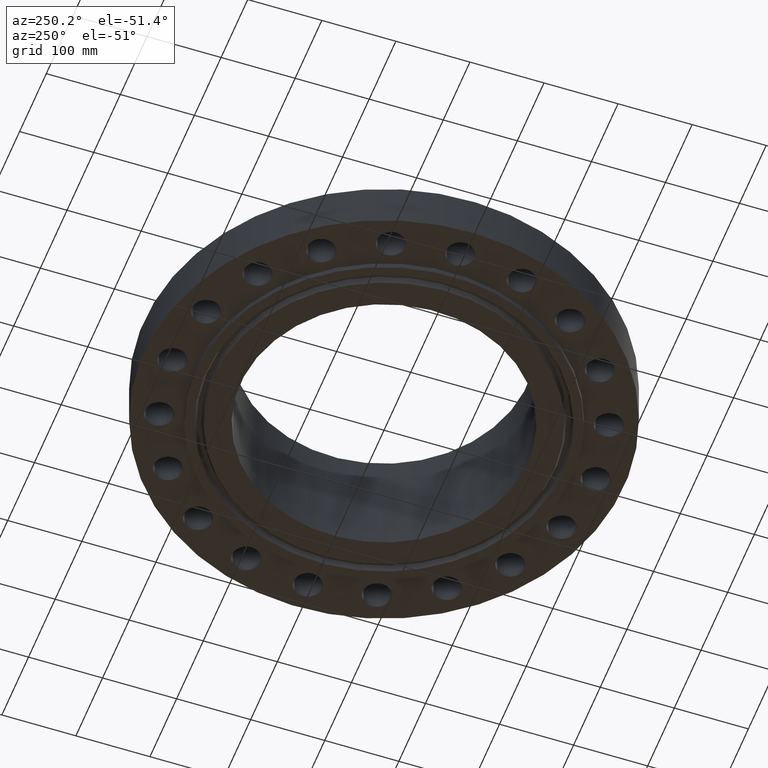
[diagram: clean part render]
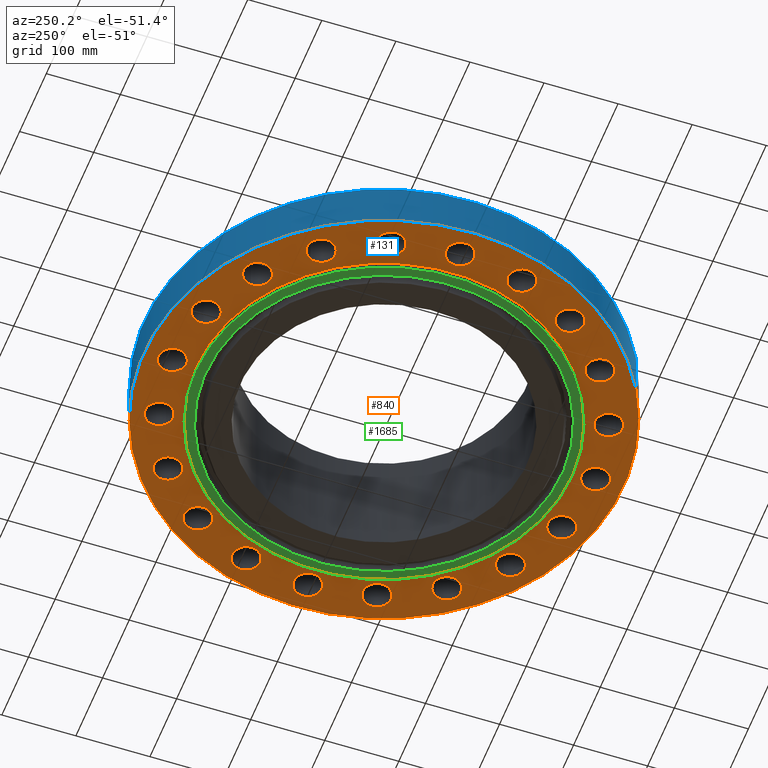
[diagram: same view with three faces highlighted in distinct colors, each labeled with its STEP entity id]
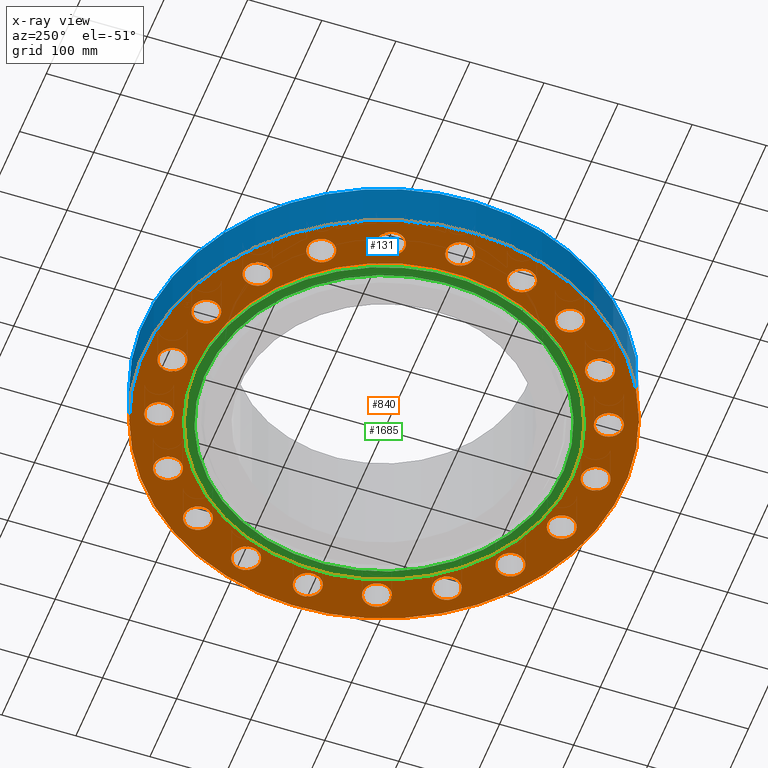
[diagram: x-ray of the same camera — body ghosted, the three highlighted faces saturated]
A machine part, auxiliary view with three faces highlighted in distinct colors.
The next image is the same camera in x-ray (body ghosted, the three faces saturated) — at least one of them is partly hidden behind the body in this view.
Their STEP definitions:

[orange] entity #840 — the highlighted planar face has unit normal (0, 0, -1).
#51=AXIS2_PLACEMENT_3D('Circle Axis2P3D',#49,#50,$) ;
#77=AXIS2_PLACEMENT_3D('Circle Axis2P3D',#75,#76,$) ;
#99=AXIS2_PLACEMENT_3D('Circle Axis2P3D',#97,#98,$) ;
#134=AXIS2_PLACEMENT_3D('Circle Axis2P3D',#132,#133,$) ;
#447=AXIS2_PLACEMENT_3D('Circle Axis2P3D',#445,#446,$) ;
#471=AXIS2_PLACEMENT_3D('Circle Axis2P3D',#469,#470,$) ;
#484=AXIS2_PLACEMENT_3D('Plane Axis2P3D',#481,#482,#483) ;
#500=AXIS2_PLACEMENT_3D('Circle Axis2P3D',#498,#499,$) ;
#509=AXIS2_PLACEMENT_3D('Circle Axis2P3D',#507,#508,$) ;
#518=AXIS2_PLACEMENT_3D('Circle Axis2P3D',#516,#517,$) ;
#527=AXIS2_PLACEMENT_3D('Circle Axis2P3D',#525,#526,$) ;
#536=AXIS2_PLACEMENT_3D('Circle Axis2P3D',#534,#535,$) ;
#545=AXIS2_PLACEMENT_3D('Circle Axis2P3D',#543,#544,$) ;
#554=AXIS2_PLACEMENT_3D('Circle Axis2P3D',#552,#553,$) ;
#563=AXIS2_PLACEMENT_3D('Circle Axis2P3D',#561,#562,$) ;
#572=AXIS2_PLACEMENT_3D('Circle Axis2P3D',#570,#571,$) ;
#581=AXIS2_PLACEMENT_3D('Circle Axis2P3D',#579,#580,$) ;
#590=AXIS2_PLACEMENT_3D('Circle Axis2P3D',#588,#589,$) ;
#599=AXIS2_PLACEMENT_3D('Circle Axis2P3D',#597,#598,$) ;
#608=AXIS2_PLACEMENT_3D('Circle Axis2P3D',#606,#607,$) ;
#617=AXIS2_PLACEMENT_3D('Circle Axis2P3D',#615,#616,$) ;
#626=AXIS2_PLACEMENT_3D('Circle Axis2P3D',#624,#625,$) ;
#635=AXIS2_PLACEMENT_3D('Circle Axis2P3D',#633,#634,$) ;
#644=AXIS2_PLACEMENT_3D('Circle Axis2P3D',#642,#643,$) ;
#653=AXIS2_PLACEMENT_3D('Circle Axis2P3D',#651,#652,$) ;
#662=AXIS2_PLACEMENT_3D('Circle Axis2P3D',#660,#661,$) ;
#671=AXIS2_PLACEMENT_3D('Circle Axis2P3D',#669,#670,$) ;
#680=AXIS2_PLACEMENT_3D('Circle Axis2P3D',#678,#679,$) ;
#689=AXIS2_PLACEMENT_3D('Circle Axis2P3D',#687,#688,$) ;
#698=AXIS2_PLACEMENT_3D('Circle Axis2P3D',#696,#697,$) ;
#707=AXIS2_PLACEMENT_3D('Circle Axis2P3D',#705,#706,$) ;
#716=AXIS2_PLACEMENT_3D('Circle Axis2P3D',#714,#715,$) ;
#725=AXIS2_PLACEMENT_3D('Circle Axis2P3D',#723,#724,$) ;
#734=AXIS2_PLACEMENT_3D('Circle Axis2P3D',#732,#733,$) ;
#743=AXIS2_PLACEMENT_3D('Circle Axis2P3D',#741,#742,$) ;
#752=AXIS2_PLACEMENT_3D('Circle Axis2P3D',#750,#751,$) ;
#761=AXIS2_PLACEMENT_3D('Circle Axis2P3D',#759,#760,$) ;
#770=AXIS2_PLACEMENT_3D('Circle Axis2P3D',#768,#769,$) ;
#779=AXIS2_PLACEMENT_3D('Circle Axis2P3D',#777,#778,$) ;
#788=AXIS2_PLACEMENT_3D('Circle Axis2P3D',#786,#787,$) ;
#797=AXIS2_PLACEMENT_3D('Circle Axis2P3D',#795,#796,$) ;
#806=AXIS2_PLACEMENT_3D('Circle Axis2P3D',#804,#805,$) ;
#815=AXIS2_PLACEMENT_3D('Circle Axis2P3D',#813,#814,$) ;
#824=AXIS2_PLACEMENT_3D('Circle Axis2P3D',#822,#823,$) ;
#833=AXIS2_PLACEMENT_3D('Circle Axis2P3D',#831,#832,$) ;
#44=CARTESIAN_POINT('Vertex',(-0.65818692142,11.609569154,-2.79741234551E-016)) ;
#49=CARTESIAN_POINT('Axis2P3D Location',(0.,11.25,0.)) ;
#53=CARTESIAN_POINT('Vertex',(0.65818692142,10.8904308461,-2.79741234551E-016)) ;
#75=CARTESIAN_POINT('Axis2P3D Location',(0.,11.25,0.)) ;
#97=CARTESIAN_POINT('Axis2P3D Location',(0.,0.,5.59482469102E-016)) ;
#101=CARTESIAN_POINT('Vertex',(-6.11267561723,-11.1891776641,5.59482469102E-016)) ;
#103=CARTESIAN_POINT('Vertex',(6.11267561723,11.1891776641,5.59482469102E-016)) ;
#132=CARTESIAN_POINT('Axis2P3D Location',(0.,0.,5.59482469102E-016)) ;
#442=CARTESIAN_POINT('Vertex',(-4.79425538606,-8.77582561894,5.59482469102E-016)) ;
#445=CARTESIAN_POINT('Axis2P3D Location',(0.,0.,1.1189649382E-015)) ;
#449=CARTESIAN_POINT('Vertex',(4.79425538606,8.77582561894,5.59482469102E-016)) ;
#469=CARTESIAN_POINT('Axis2P3D Location',(0.,0.,1.1189649382E-015)) ;
#481=CARTESIAN_POINT('Axis2P3D Location',(0.,10.,0.)) ;
#498=CARTESIAN_POINT('Axis2P3D Location',(3.47644118673,10.6993858084,0.)) ;
#502=CARTESIAN_POINT('Vertex',(2.9615812054,11.2447473395,0.)) ;
#504=CARTESIAN_POINT('Vertex',(3.99130116806,10.1540242772,-2.79741234551E-016)) ;
#507=CARTESIAN_POINT('Axis2P3D Location',(3.47644118673,10.6993858084,0.)) ;
#516=CARTESIAN_POINT('Axis2P3D Location',(6.61258408832,9.10144118675,0.)) ;
#520=CARTESIAN_POINT('Vertex',(6.29144912929,9.77921130862,0.)) ;
#522=CARTESIAN_POINT('Vertex',(6.93371904735,8.42367106489,-1.95818864186E-015)) ;
#525=CARTESIAN_POINT('Axis2P3D Location',(6.61258408832,9.10144118675,0.)) ;
#534=CARTESIAN_POINT('Axis2P3D Location',(9.10144118675,6.61258408832,0.)) ;
#538=CARTESIAN_POINT('Vertex',(9.00546617729,7.3564179391,0.)) ;
#540=CARTESIAN_POINT('Vertex',(9.19741619621,5.86875023754,-2.79741234551E-016)) ;
#543=CARTESIAN_POINT('Axis2P3D Location',(9.10144118675,6.61258408832,0.)) ;
#552=CARTESIAN_POINT('Axis2P3D Location',(10.6993858084,3.47644118673,0.)) ;
#556=CARTESIAN_POINT('Vertex',(10.8379654511,4.21352712651,0.)) ;
#558=CARTESIAN_POINT('Vertex',(10.5608061656,2.73935524695,-2.79741234551E-016)) ;
#561=CARTESIAN_POINT('Axis2P3D Location',(10.6993858084,3.47644118673,0.)) ;
#570=CARTESIAN_POINT('Axis2P3D Location',(11.25,2.23792987641E-015,0.)) ;
#574=CARTESIAN_POINT('Vertex',(11.609569154,0.65818692142,0.)) ;
#576=CARTESIAN_POINT('Vertex',(10.8904308461,-0.65818692142,-2.79741234551E-016)) ;
#579=CARTESIAN_POINT('Axis2P3D Location',(11.25,0.,0.)) ;
#588=CARTESIAN_POINT('Axis2P3D Location',(10.6993858084,-3.47644118673,0.)) ;
#592=CARTESIAN_POINT('Vertex',(11.2447473395,-2.9615812054,0.)) ;
#594=CARTESIAN_POINT('Vertex',(10.1540242772,-3.99130116806,-2.79741234551E-016)) ;
#597=CARTESIAN_POINT('Axis2P3D Location',(10.6993858084,-3.47644118673,0.)) ;
#606=CARTESIAN_POINT('Axis2P3D Location',(9.10144118675,-6.61258408832,0.)) ;
#610=CARTESIAN_POINT('Vertex',(9.77921130862,-6.29144912929,0.)) ;
#612=CARTESIAN_POINT('Vertex',(8.42367106489,-6.93371904735,-2.79741234551E-016)) ;
#615=CARTESIAN_POINT('Axis2P3D Location',(9.10144118675,-6.61258408832,0.)) ;
#624=CARTESIAN_POINT('Axis2P3D Location',(6.61258408832,-9.10144118675,0.)) ;
#628=CARTESIAN_POINT('Vertex',(7.3564179391,-9.00546617729,0.)) ;
#630=CARTESIAN_POINT('Vertex',(5.86875023754,-9.19741619621,-2.79741234551E-016)) ;
#633=CARTESIAN_POINT('Axis2P3D Location',(6.61258408832,-9.10144118675,0.)) ;
#642=CARTESIAN_POINT('Axis2P3D Location',(3.47644118673,-10.6993858084,0.)) ;
#646=CARTESIAN_POINT('Vertex',(4.21352712651,-10.8379654511,0.)) ;
#648=CARTESIAN_POINT('Vertex',(2.73935524695,-10.5608061656,-2.79741234551E-016)) ;
#651=CARTESIAN_POINT('Axis2P3D Location',(3.47644118673,-10.6993858084,0.)) ;
#660=CARTESIAN_POINT('Axis2P3D Location',(6.73127345639E-015,-11.25,0.)) ;
#664=CARTESIAN_POINT('Vertex',(0.65818692142,-11.609569154,0.)) ;
#666=CARTESIAN_POINT('Vertex',(-0.65818692142,-10.8904308461,-2.79741234551E-016)) ;
#669=CARTESIAN_POINT('Axis2P3D Location',(6.18927481445E-015,-11.25,0.)) ;
#678=CARTESIAN_POINT('Axis2P3D Location',(-3.47644118673,-10.6993858084,0.)) ;
#682=CARTESIAN_POINT('Vertex',(-2.9615812054,-11.2447473395,0.)) ;
#684=CARTESIAN_POINT('Vertex',(-3.99130116806,-10.1540242772,-2.79741234551E-016)) ;
#687=CARTESIAN_POINT('Axis2P3D Location',(-3.47644118673,-10.6993858084,0.)) ;
#696=CARTESIAN_POINT('Axis2P3D Location',(-6.61258408832,-9.10144118675,0.)) ;
#700=CARTESIAN_POINT('Vertex',(-6.29144912929,-9.77921130862,0.)) ;
#702=CARTESIAN_POINT('Vertex',(-6.93371904735,-8.42367106489,-1.95818864186E-015)) ;
#705=CARTESIAN_POINT('Axis2P3D Location',(-6.61258408832,-9.10144118675,0.)) ;
#714=CARTESIAN_POINT('Axis2P3D Location',(-9.10144118675,-6.61258408832,0.)) ;
#718=CARTESIAN_POINT('Vertex',(-9.00546617729,-7.3564179391,0.)) ;
#720=CARTESIAN_POINT('Vertex',(-9.19741619621,-5.86875023754,-2.79741234551E-016)) ;
#723=CARTESIAN_POINT('Axis2P3D Location',(-9.10144118675,-6.61258408832,0.)) ;
#732=CARTESIAN_POINT('Axis2P3D Location',(-10.6993858084,-3.47644118673,0.)) ;
#736=CARTESIAN_POINT('Vertex',(-10.8379654511,-4.21352712651,0.)) ;
#738=CARTESIAN_POINT('Vertex',(-10.5608061656,-2.73935524695,-1.95818864186E-015)) ;
#741=CARTESIAN_POINT('Axis2P3D Location',(-10.6993858084,-3.47644118673,0.)) ;
#750=CARTESIAN_POINT('Axis2P3D Location',(-11.25,-8.95171950564E-015,0.)) ;
#754=CARTESIAN_POINT('Vertex',(-11.609569154,-0.65818692142,0.)) ;
#756=CARTESIAN_POINT('Vertex',(-10.8904308461,0.65818692142,-2.79741234551E-016)) ;
#759=CARTESIAN_POINT('Axis2P3D Location',(-11.25,-8.95171950564E-015,0.)) ;
#768=CARTESIAN_POINT('Axis2P3D Location',(-10.6993858084,3.47644118673,0.)) ;
#772=CARTESIAN_POINT('Vertex',(-11.2447473395,2.9615812054,0.)) ;
#774=CARTESIAN_POINT('Vertex',(-10.1540242772,3.99130116806,-1.95818864186E-015)) ;
#777=CARTESIAN_POINT('Axis2P3D Location',(-10.6993858084,3.47644118673,0.)) ;
#786=CARTESIAN_POINT('Axis2P3D Location',(-9.10144118675,6.61258408832,0.)) ;
#790=CARTESIAN_POINT('Vertex',(-9.77921130862,6.29144912929,0.)) ;
#792=CARTESIAN_POINT('Vertex',(-8.42367106489,6.93371904735,-2.79741234551E-016)) ;
#795=CARTESIAN_POINT('Axis2P3D Location',(-9.10144118675,6.61258408832,0.)) ;
#804=CARTESIAN_POINT('Axis2P3D Location',(-6.61258408832,9.10144118675,0.)) ;
#808=CARTESIAN_POINT('Vertex',(-7.3564179391,9.00546617729,0.)) ;
#810=CARTESIAN_POINT('Vertex',(-5.86875023754,9.19741619621,-2.79741234551E-016)) ;
#813=CARTESIAN_POINT('Axis2P3D Location',(-6.61258408832,9.10144118675,0.)) ;
#822=CARTESIAN_POINT('Axis2P3D Location',(-3.47644118673,10.6993858084,0.)) ;
#826=CARTESIAN_POINT('Vertex',(-4.21352712651,10.8379654511,0.)) ;
#828=CARTESIAN_POINT('Vertex',(-2.73935524695,10.5608061656,-1.95818864186E-015)) ;
#831=CARTESIAN_POINT('Axis2P3D Location',(-3.47644118673,10.6993858084,0.)) ;
#50=DIRECTION('Axis2P3D Direction',(0.,-0.,-0.0393700787402)) ;
#76=DIRECTION('Axis2P3D Direction',(0.,-0.,-0.0393700787402)) ;
#98=DIRECTION('Axis2P3D Direction',(0.,0.,-0.0393700787402)) ;
#133=DIRECTION('Axis2P3D Direction',(0.,0.,-0.0393700787402)) ;
#446=DIRECTION('Axis2P3D Direction',(0.,0.,-0.0393700787402)) ;
#470=DIRECTION('Axis2P3D Direction',(0.,0.,-0.0393700787402)) ;
#482=DIRECTION('Axis2P3D Direction',(0.,0.,-0.0393700787402)) ;
#483=DIRECTION('Axis2P3D XDirection',(0.0393700787402,0.,0.)) ;
#499=DIRECTION('Axis2P3D Direction',(0.,0.,-0.0393700787402)) ;
#508=DIRECTION('Axis2P3D Direction',(0.,0.,-0.0393700787402)) ;
#517=DIRECTION('Axis2P3D Direction',(0.,0.,-0.0393700787402)) ;
#526=DIRECTION('Axis2P3D Direction',(0.,0.,-0.0393700787402)) ;
#535=DIRECTION('Axis2P3D Direction',(0.,0.,-0.0393700787402)) ;
#544=DIRECTION('Axis2P3D Direction',(0.,0.,-0.0393700787402)) ;
#553=DIRECTION('Axis2P3D Direction',(0.,0.,-0.0393700787402)) ;
#562=DIRECTION('Axis2P3D Direction',(0.,0.,-0.0393700787402)) ;
#571=DIRECTION('Axis2P3D Direction',(0.,0.,-0.0393700787402)) ;
#580=DIRECTION('Axis2P3D Direction',(0.,0.,-0.0393700787402)) ;
#589=DIRECTION('Axis2P3D Direction',(0.,0.,-0.0393700787402)) ;
#598=DIRECTION('Axis2P3D Direction',(0.,0.,-0.0393700787402)) ;
#607=DIRECTION('Axis2P3D Direction',(0.,0.,-0.0393700787402)) ;
#616=DIRECTION('Axis2P3D Direction',(0.,0.,-0.0393700787402)) ;
#625=DIRECTION('Axis2P3D Direction',(0.,0.,-0.0393700787402)) ;
#634=DIRECTION('Axis2P3D Direction',(0.,0.,-0.0393700787402)) ;
#643=DIRECTION('Axis2P3D Direction',(0.,0.,-0.0393700787402)) ;
#652=DIRECTION('Axis2P3D Direction',(0.,0.,-0.0393700787402)) ;
#661=DIRECTION('Axis2P3D Direction',(0.,0.,-0.0393700787402)) ;
#670=DIRECTION('Axis2P3D Direction',(0.,0.,-0.0393700787402)) ;
#679=DIRECTION('Axis2P3D Direction',(0.,0.,-0.0393700787402)) ;
#688=DIRECTION('Axis2P3D Direction',(0.,0.,-0.0393700787402)) ;
#697=DIRECTION('Axis2P3D Direction',(0.,0.,-0.0393700787402)) ;
#706=DIRECTION('Axis2P3D Direction',(0.,0.,-0.0393700787402)) ;
#715=DIRECTION('Axis2P3D Direction',(0.,0.,-0.0393700787402)) ;
#724=DIRECTION('Axis2P3D Direction',(0.,0.,-0.0393700787402)) ;
#733=DIRECTION('Axis2P3D Direction',(0.,0.,-0.0393700787402)) ;
#742=DIRECTION('Axis2P3D Direction',(0.,0.,-0.0393700787402)) ;
#751=DIRECTION('Axis2P3D Direction',(0.,0.,-0.0393700787402)) ;
#760=DIRECTION('Axis2P3D Direction',(0.,0.,-0.0393700787402)) ;
#769=DIRECTION('Axis2P3D Direction',(0.,0.,-0.0393700787402)) ;
#778=DIRECTION('Axis2P3D Direction',(0.,0.,-0.0393700787402)) ;
#787=DIRECTION('Axis2P3D Direction',(0.,0.,-0.0393700787402)) ;
#796=DIRECTION('Axis2P3D Direction',(0.,0.,-0.0393700787402)) ;
#805=DIRECTION('Axis2P3D Direction',(0.,0.,-0.0393700787402)) ;
#814=DIRECTION('Axis2P3D Direction',(0.,0.,-0.0393700787402)) ;
#823=DIRECTION('Axis2P3D Direction',(0.,0.,-0.0393700787402)) ;
#832=DIRECTION('Axis2P3D Direction',(0.,0.,-0.0393700787402)) ;
#487=ORIENTED_EDGE('',*,*,#105,.T.) ;
#488=ORIENTED_EDGE('',*,*,#136,.T.) ;
#491=ORIENTED_EDGE('',*,*,#79,.F.) ;
#492=ORIENTED_EDGE('',*,*,#55,.F.) ;
#495=ORIENTED_EDGE('',*,*,#473,.F.) ;
#496=ORIENTED_EDGE('',*,*,#451,.F.) ;
#513=ORIENTED_EDGE('',*,*,#506,.F.) ;
#514=ORIENTED_EDGE('',*,*,#511,.F.) ;
#531=ORIENTED_EDGE('',*,*,#524,.F.) ;
#532=ORIENTED_EDGE('',*,*,#529,.F.) ;
#549=ORIENTED_EDGE('',*,*,#542,.F.) ;
#550=ORIENTED_EDGE('',*,*,#547,.F.) ;
#567=ORIENTED_EDGE('',*,*,#560,.F.) ;
#568=ORIENTED_EDGE('',*,*,#565,.F.) ;
#585=ORIENTED_EDGE('',*,*,#578,.F.) ;
#586=ORIENTED_EDGE('',*,*,#583,.F.) ;
#603=ORIENTED_EDGE('',*,*,#596,.F.) ;
#604=ORIENTED_EDGE('',*,*,#601,.F.) ;
#621=ORIENTED_EDGE('',*,*,#614,.F.) ;
#622=ORIENTED_EDGE('',*,*,#619,.F.) ;
#639=ORIENTED_EDGE('',*,*,#632,.F.) ;
#640=ORIENTED_EDGE('',*,*,#637,.F.) ;
#657=ORIENTED_EDGE('',*,*,#650,.F.) ;
#658=ORIENTED_EDGE('',*,*,#655,.F.) ;
#675=ORIENTED_EDGE('',*,*,#668,.F.) ;
#676=ORIENTED_EDGE('',*,*,#673,.F.) ;
#693=ORIENTED_EDGE('',*,*,#686,.F.) ;
#694=ORIENTED_EDGE('',*,*,#691,.F.) ;
#711=ORIENTED_EDGE('',*,*,#704,.F.) ;
#712=ORIENTED_EDGE('',*,*,#709,.F.) ;
#729=ORIENTED_EDGE('',*,*,#722,.F.) ;
#730=ORIENTED_EDGE('',*,*,#727,.F.) ;
#747=ORIENTED_EDGE('',*,*,#740,.F.) ;
#748=ORIENTED_EDGE('',*,*,#745,.F.) ;
#765=ORIENTED_EDGE('',*,*,#758,.F.) ;
#766=ORIENTED_EDGE('',*,*,#763,.F.) ;
#783=ORIENTED_EDGE('',*,*,#776,.F.) ;
#784=ORIENTED_EDGE('',*,*,#781,.F.) ;
#801=ORIENTED_EDGE('',*,*,#794,.F.) ;
#802=ORIENTED_EDGE('',*,*,#799,.F.) ;
#819=ORIENTED_EDGE('',*,*,#812,.F.) ;
#820=ORIENTED_EDGE('',*,*,#817,.F.) ;
#837=ORIENTED_EDGE('',*,*,#830,.F.) ;
#838=ORIENTED_EDGE('',*,*,#835,.F.) ;
#493=FACE_BOUND('',#490,.T.) ;
#497=FACE_BOUND('',#494,.T.) ;
#515=FACE_BOUND('',#512,.T.) ;
#533=FACE_BOUND('',#530,.T.) ;
#551=FACE_BOUND('',#548,.T.) ;
#569=FACE_BOUND('',#566,.T.) ;
#587=FACE_BOUND('',#584,.T.) ;
#605=FACE_BOUND('',#602,.T.) ;
#623=FACE_BOUND('',#620,.T.) ;
#641=FACE_BOUND('',#638,.T.) ;
#659=FACE_BOUND('',#656,.T.) ;
#677=FACE_BOUND('',#674,.T.) ;
#695=FACE_BOUND('',#692,.T.) ;
#713=FACE_BOUND('',#710,.T.) ;
#731=FACE_BOUND('',#728,.T.) ;
#749=FACE_BOUND('',#746,.T.) ;
#767=FACE_BOUND('',#764,.T.) ;
#785=FACE_BOUND('',#782,.T.) ;
#803=FACE_BOUND('',#800,.T.) ;
#821=FACE_BOUND('',#818,.T.) ;
#839=FACE_BOUND('',#836,.T.) ;
#840=ADVANCED_FACE('PartBody',(#489,#493,#497,#515,#533,#551,#569,#587,#605,#623,#641,#659,#677,#695,#713,#731,#749,#767,#785,#803,#821,#839),#485,.T.) ;
#52=CIRCLE('generated circle',#51,0.750000000003) ;
#78=CIRCLE('generated circle',#77,0.750000000003) ;
#100=CIRCLE('generated circle',#99,12.7500000001) ;
#135=CIRCLE('generated circle',#134,12.7500000001) ;
#448=CIRCLE('generated circle',#447,10.) ;
#472=CIRCLE('generated circle',#471,10.) ;
#501=CIRCLE('generated circle',#500,0.750000000003) ;
#510=CIRCLE('generated circle',#509,0.750000000003) ;
#519=CIRCLE('generated circle',#518,0.750000000003) ;
#528=CIRCLE('generated circle',#527,0.750000000003) ;
#537=CIRCLE('generated circle',#536,0.750000000003) ;
#546=CIRCLE('generated circle',#545,0.750000000003) ;
#555=CIRCLE('generated circle',#554,0.750000000003) ;
#564=CIRCLE('generated circle',#563,0.750000000003) ;
#573=CIRCLE('generated circle',#572,0.750000000003) ;
#582=CIRCLE('generated circle',#581,0.750000000003) ;
#591=CIRCLE('generated circle',#590,0.750000000003) ;
#600=CIRCLE('generated circle',#599,0.750000000003) ;
#609=CIRCLE('generated circle',#608,0.750000000003) ;
#618=CIRCLE('generated circle',#617,0.750000000003) ;
#627=CIRCLE('generated circle',#626,0.750000000003) ;
#636=CIRCLE('generated circle',#635,0.750000000003) ;
#645=CIRCLE('generated circle',#644,0.750000000003) ;
#654=CIRCLE('generated circle',#653,0.750000000003) ;
#663=CIRCLE('generated circle',#662,0.750000000003) ;
#672=CIRCLE('generated circle',#671,0.750000000003) ;
#681=CIRCLE('generated circle',#680,0.750000000003) ;
#690=CIRCLE('generated circle',#689,0.750000000003) ;
#699=CIRCLE('generated circle',#698,0.750000000003) ;
#708=CIRCLE('generated circle',#707,0.750000000003) ;
#717=CIRCLE('generated circle',#716,0.750000000003) ;
#726=CIRCLE('generated circle',#725,0.750000000003) ;
#735=CIRCLE('generated circle',#734,0.750000000003) ;
#744=CIRCLE('generated circle',#743,0.750000000003) ;
#753=CIRCLE('generated circle',#752,0.750000000003) ;
#762=CIRCLE('generated circle',#761,0.750000000003) ;
#771=CIRCLE('generated circle',#770,0.750000000003) ;
#780=CIRCLE('generated circle',#779,0.750000000003) ;
#789=CIRCLE('generated circle',#788,0.750000000003) ;
#798=CIRCLE('generated circle',#797,0.750000000003) ;
#807=CIRCLE('generated circle',#806,0.750000000003) ;
#816=CIRCLE('generated circle',#815,0.750000000003) ;
#825=CIRCLE('generated circle',#824,0.750000000003) ;
#834=CIRCLE('generated circle',#833,0.750000000003) ;
#55=EDGE_CURVE('',#45,#54,#52,.T.) ;
#79=EDGE_CURVE('',#54,#45,#78,.T.) ;
#105=EDGE_CURVE('',#102,#104,#100,.T.) ;
#136=EDGE_CURVE('',#104,#102,#135,.T.) ;
#451=EDGE_CURVE('',#443,#450,#448,.T.) ;
#473=EDGE_CURVE('',#450,#443,#472,.T.) ;
#506=EDGE_CURVE('',#503,#505,#501,.T.) ;
#511=EDGE_CURVE('',#505,#503,#510,.T.) ;
#524=EDGE_CURVE('',#521,#523,#519,.T.) ;
#529=EDGE_CURVE('',#523,#521,#528,.T.) ;
#542=EDGE_CURVE('',#539,#541,#537,.T.) ;
#547=EDGE_CURVE('',#541,#539,#546,.T.) ;
#560=EDGE_CURVE('',#557,#559,#555,.T.) ;
#565=EDGE_CURVE('',#559,#557,#564,.T.) ;
#578=EDGE_CURVE('',#575,#577,#573,.T.) ;
#583=EDGE_CURVE('',#577,#575,#582,.T.) ;
#596=EDGE_CURVE('',#593,#595,#591,.T.) ;
#601=EDGE_CURVE('',#595,#593,#600,.T.) ;
#614=EDGE_CURVE('',#611,#613,#609,.T.) ;
#619=EDGE_CURVE('',#613,#611,#618,.T.) ;
#632=EDGE_CURVE('',#629,#631,#627,.T.) ;
#637=EDGE_CURVE('',#631,#629,#636,.T.) ;
#650=EDGE_CURVE('',#647,#649,#645,.T.) ;
#655=EDGE_CURVE('',#649,#647,#654,.T.) ;
#668=EDGE_CURVE('',#665,#667,#663,.T.) ;
#673=EDGE_CURVE('',#667,#665,#672,.T.) ;
#686=EDGE_CURVE('',#683,#685,#681,.T.) ;
#691=EDGE_CURVE('',#685,#683,#690,.T.) ;
#704=EDGE_CURVE('',#701,#703,#699,.T.) ;
#709=EDGE_CURVE('',#703,#701,#708,.T.) ;
#722=EDGE_CURVE('',#719,#721,#717,.T.) ;
#727=EDGE_CURVE('',#721,#719,#726,.T.) ;
#740=EDGE_CURVE('',#737,#739,#735,.T.) ;
#745=EDGE_CURVE('',#739,#737,#744,.T.) ;
#758=EDGE_CURVE('',#755,#757,#753,.T.) ;
#763=EDGE_CURVE('',#757,#755,#762,.T.) ;
#776=EDGE_CURVE('',#773,#775,#771,.T.) ;
#781=EDGE_CURVE('',#775,#773,#780,.T.) ;
#794=EDGE_CURVE('',#791,#793,#789,.T.) ;
#799=EDGE_CURVE('',#793,#791,#798,.T.) ;
#812=EDGE_CURVE('',#809,#811,#807,.T.) ;
#817=EDGE_CURVE('',#811,#809,#816,.T.) ;
#830=EDGE_CURVE('',#827,#829,#825,.T.) ;
#835=EDGE_CURVE('',#829,#827,#834,.T.) ;
#486=EDGE_LOOP('',(#487,#488)) ;
#490=EDGE_LOOP('',(#491,#492)) ;
#494=EDGE_LOOP('',(#495,#496)) ;
#512=EDGE_LOOP('',(#513,#514)) ;
#530=EDGE_LOOP('',(#531,#532)) ;
#548=EDGE_LOOP('',(#549,#550)) ;
#566=EDGE_LOOP('',(#567,#568)) ;
#584=EDGE_LOOP('',(#585,#586)) ;
#602=EDGE_LOOP('',(#603,#604)) ;
#620=EDGE_LOOP('',(#621,#622)) ;
#638=EDGE_LOOP('',(#639,#640)) ;
#656=EDGE_LOOP('',(#657,#658)) ;
#674=EDGE_LOOP('',(#675,#676)) ;
#692=EDGE_LOOP('',(#693,#694)) ;
#710=EDGE_LOOP('',(#711,#712)) ;
#728=EDGE_LOOP('',(#729,#730)) ;
#746=EDGE_LOOP('',(#747,#748)) ;
#764=EDGE_LOOP('',(#765,#766)) ;
#782=EDGE_LOOP('',(#783,#784)) ;
#800=EDGE_LOOP('',(#801,#802)) ;
#818=EDGE_LOOP('',(#819,#820)) ;
#836=EDGE_LOOP('',(#837,#838)) ;
#489=FACE_OUTER_BOUND('',#486,.T.) ;
#485=PLANE('',#484) ;
#45=VERTEX_POINT('',#44) ;
#54=VERTEX_POINT('',#53) ;
#102=VERTEX_POINT('',#101) ;
#104=VERTEX_POINT('',#103) ;
#443=VERTEX_POINT('',#442) ;
#450=VERTEX_POINT('',#449) ;
#503=VERTEX_POINT('',#502) ;
#505=VERTEX_POINT('',#504) ;
#521=VERTEX_POINT('',#520) ;
#523=VERTEX_POINT('',#522) ;
#539=VERTEX_POINT('',#538) ;
#541=VERTEX_POINT('',#540) ;
#557=VERTEX_POINT('',#556) ;
#559=VERTEX_POINT('',#558) ;
#575=VERTEX_POINT('',#574) ;
#577=VERTEX_POINT('',#576) ;
#593=VERTEX_POINT('',#592) ;
#595=VERTEX_POINT('',#594) ;
#611=VERTEX_POINT('',#610) ;
#613=VERTEX_POINT('',#612) ;
#629=VERTEX_POINT('',#628) ;
#631=VERTEX_POINT('',#630) ;
#647=VERTEX_POINT('',#646) ;
#649=VERTEX_POINT('',#648) ;
#665=VERTEX_POINT('',#664) ;
#667=VERTEX_POINT('',#666) ;
#683=VERTEX_POINT('',#682) ;
#685=VERTEX_POINT('',#684) ;
#701=VERTEX_POINT('',#700) ;
#703=VERTEX_POINT('',#702) ;
#719=VERTEX_POINT('',#718) ;
#721=VERTEX_POINT('',#720) ;
#737=VERTEX_POINT('',#736) ;
#739=VERTEX_POINT('',#738) ;
#755=VERTEX_POINT('',#754) ;
#757=VERTEX_POINT('',#756) ;
#773=VERTEX_POINT('',#772) ;
#775=VERTEX_POINT('',#774) ;
#791=VERTEX_POINT('',#790) ;
#793=VERTEX_POINT('',#792) ;
#809=VERTEX_POINT('',#808) ;
#811=VERTEX_POINT('',#810) ;
#827=VERTEX_POINT('',#826) ;
#829=VERTEX_POINT('',#828) ;

[blue] entity #131 — the highlighted cylindrical surface (partial cylindrical patch) has radius 323.85 mm, axis along (0, 0, -1).
#95=AXIS2_PLACEMENT_3D('Cylinder Axis2P3D',#92,#93,#94) ;
#99=AXIS2_PLACEMENT_3D('Circle Axis2P3D',#97,#98,$) ;
#115=AXIS2_PLACEMENT_3D('Circle Axis2P3D',#113,#114,$) ;
#92=CARTESIAN_POINT('Axis2P3D Location',(0.,0.,2.84350000001)) ;
#97=CARTESIAN_POINT('Axis2P3D Location',(0.,0.,5.59482469102E-016)) ;
#101=CARTESIAN_POINT('Vertex',(-6.11267561723,-11.1891776641,5.59482469102E-016)) ;
#103=CARTESIAN_POINT('Vertex',(6.11267561723,11.1891776641,5.59482469102E-016)) ;
#106=CARTESIAN_POINT('Line Origine',(-6.11267561723,-11.1891776641,1.25000000001)) ;
#110=CARTESIAN_POINT('Vertex',(-6.11267561723,-11.1891776641,2.50000000001)) ;
#113=CARTESIAN_POINT('Axis2P3D Location',(0.,0.,2.50000000001)) ;
#117=CARTESIAN_POINT('Vertex',(6.11267561723,11.1891776641,2.50000000001)) ;
#120=CARTESIAN_POINT('Line Origine',(6.11267561723,11.1891776641,1.25000000001)) ;
#93=DIRECTION('Axis2P3D Direction',(0.,0.,-0.0393700787402)) ;
#94=DIRECTION('Axis2P3D XDirection',(0.0188750212049,0.0345504945626,0.)) ;
#98=DIRECTION('Axis2P3D Direction',(0.,0.,-0.0393700787402)) ;
#107=DIRECTION('Vector Direction',(0.,0.,-0.0393700787402)) ;
#114=DIRECTION('Axis2P3D Direction',(0.,0.,-0.0393700787402)) ;
#121=DIRECTION('Vector Direction',(0.,0.,-0.0393700787402)) ;
#108=VECTOR('Line Direction',#107,0.0393700787402) ;
#122=VECTOR('Line Direction',#121,0.0393700787402) ;
#126=ORIENTED_EDGE('',*,*,#105,.F.) ;
#127=ORIENTED_EDGE('',*,*,#112,.T.) ;
#128=ORIENTED_EDGE('',*,*,#119,.T.) ;
#129=ORIENTED_EDGE('',*,*,#124,.F.) ;
#131=ADVANCED_FACE('PartBody',(#130),#96,.T.) ;
#100=CIRCLE('generated circle',#99,12.7500000001) ;
#116=CIRCLE('generated circle',#115,12.7500000001) ;
#96=CYLINDRICAL_SURFACE('generated cylinder',#95,12.7500000001) ;
#105=EDGE_CURVE('',#102,#104,#100,.T.) ;
#112=EDGE_CURVE('',#102,#111,#109,.F.) ;
#119=EDGE_CURVE('',#111,#118,#116,.T.) ;
#124=EDGE_CURVE('',#104,#118,#123,.F.) ;
#125=EDGE_LOOP('',(#126,#127,#128,#129)) ;
#130=FACE_OUTER_BOUND('',#125,.T.) ;
#109=LINE('Line',#106,#108) ;
#123=LINE('Line',#120,#122) ;
#102=VERTEX_POINT('',#101) ;
#104=VERTEX_POINT('',#103) ;
#111=VERTEX_POINT('',#110) ;
#118=VERTEX_POINT('',#117) ;

[green] entity #1685 — the highlighted planar face has unit normal (0, 0, -1).
#431=AXIS2_PLACEMENT_3D('Circle Axis2P3D',#429,#430,$) ;
#466=AXIS2_PLACEMENT_3D('Circle Axis2P3D',#464,#465,$) ;
#1661=AXIS2_PLACEMENT_3D('Plane Axis2P3D',#1658,#1659,#1660) ;
#1669=AXIS2_PLACEMENT_3D('Circle Axis2P3D',#1667,#1668,$) ;
#1678=AXIS2_PLACEMENT_3D('Circle Axis2P3D',#1676,#1677,$) ;
#429=CARTESIAN_POINT('Axis2P3D Location',(0.,0.,-0.313000000001)) ;
#433=CARTESIAN_POINT('Vertex',(-4.79425538606,-8.77582561894,-0.313000000001)) ;
#435=CARTESIAN_POINT('Vertex',(4.79425538606,8.77582561894,-0.313000000001)) ;
#464=CARTESIAN_POINT('Axis2P3D Location',(0.,0.,-0.313000000001)) ;
#1658=CARTESIAN_POINT('Axis2P3D Location',(0.,7.62500000003,-0.313000000001)) ;
#1667=CARTESIAN_POINT('Axis2P3D Location',(0.,-3.35689481461E-015,-0.313000000001)) ;
#1671=CARTESIAN_POINT('Vertex',(4.54711152091,-8.32343180828,-0.313000000001)) ;
#1673=CARTESIAN_POINT('Vertex',(-4.54711152091,8.32343180828,-0.313000000001)) ;
#1676=CARTESIAN_POINT('Axis2P3D Location',(1.39870617276E-015,2.23792987641E-015,-0.313000000001)) ;
#430=DIRECTION('Axis2P3D Direction',(0.,0.,-0.0393700787402)) ;
#465=DIRECTION('Axis2P3D Direction',(0.,0.,-0.0393700787402)) ;
#1659=DIRECTION('Axis2P3D Direction',(0.,0.,-0.0393700787402)) ;
#1660=DIRECTION('Axis2P3D XDirection',(0.0393700787402,0.,0.)) ;
#1668=DIRECTION('Axis2P3D Direction',(0.,0.,-0.0393700787402)) ;
#1677=DIRECTION('Axis2P3D Direction',(0.,0.,-0.0393700787402)) ;
#1664=ORIENTED_EDGE('',*,*,#437,.T.) ;
#1665=ORIENTED_EDGE('',*,*,#468,.T.) ;
#1682=ORIENTED_EDGE('',*,*,#1675,.F.) ;
#1683=ORIENTED_EDGE('',*,*,#1680,.F.) ;
#1684=FACE_BOUND('',#1681,.T.) ;
#1685=ADVANCED_FACE('PartBody',(#1666,#1684),#1662,.T.) ;
#432=CIRCLE('generated circle',#431,10.) ;
#467=CIRCLE('generated circle',#466,10.) ;
#1670=CIRCLE('generated circle',#1669,9.48450000004) ;
#1679=CIRCLE('generated circle',#1678,9.48450000004) ;
#437=EDGE_CURVE('',#434,#436,#432,.T.) ;
#468=EDGE_CURVE('',#436,#434,#467,.T.) ;
#1675=EDGE_CURVE('',#1672,#1674,#1670,.T.) ;
#1680=EDGE_CURVE('',#1674,#1672,#1679,.T.) ;
#1663=EDGE_LOOP('',(#1664,#1665)) ;
#1681=EDGE_LOOP('',(#1682,#1683)) ;
#1666=FACE_OUTER_BOUND('',#1663,.T.) ;
#1662=PLANE('',#1661) ;
#434=VERTEX_POINT('',#433) ;
#436=VERTEX_POINT('',#435) ;
#1672=VERTEX_POINT('',#1671) ;
#1674=VERTEX_POINT('',#1673) ;